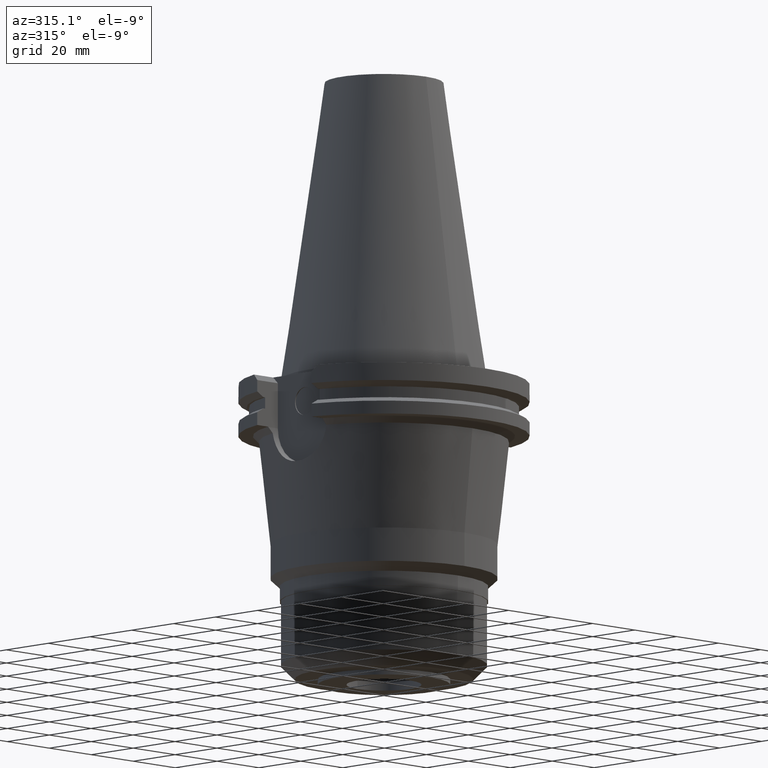
[diagram: clean part render]
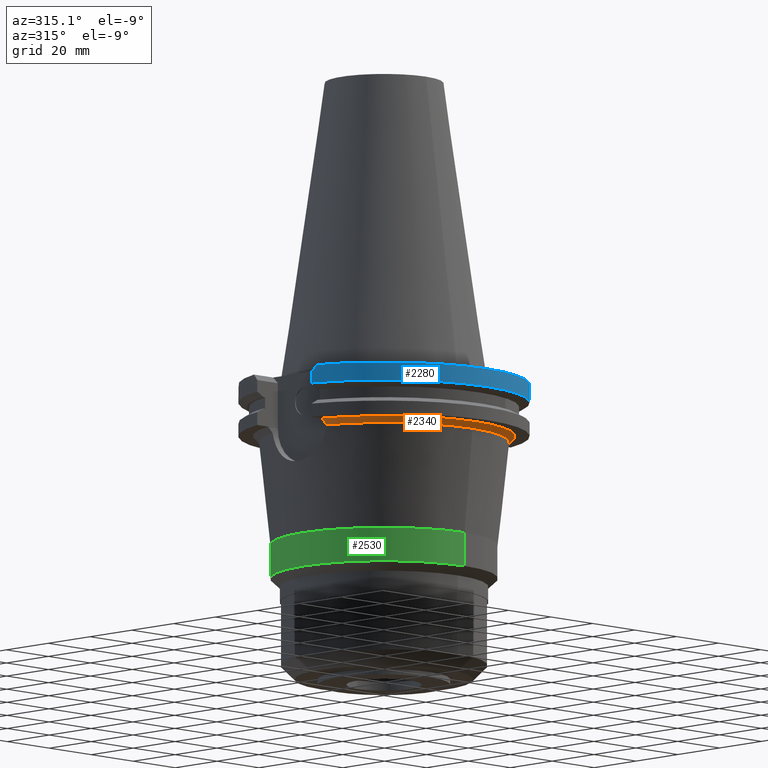
[diagram: same view with three faces highlighted in distinct colors, each labeled with its STEP entity id]
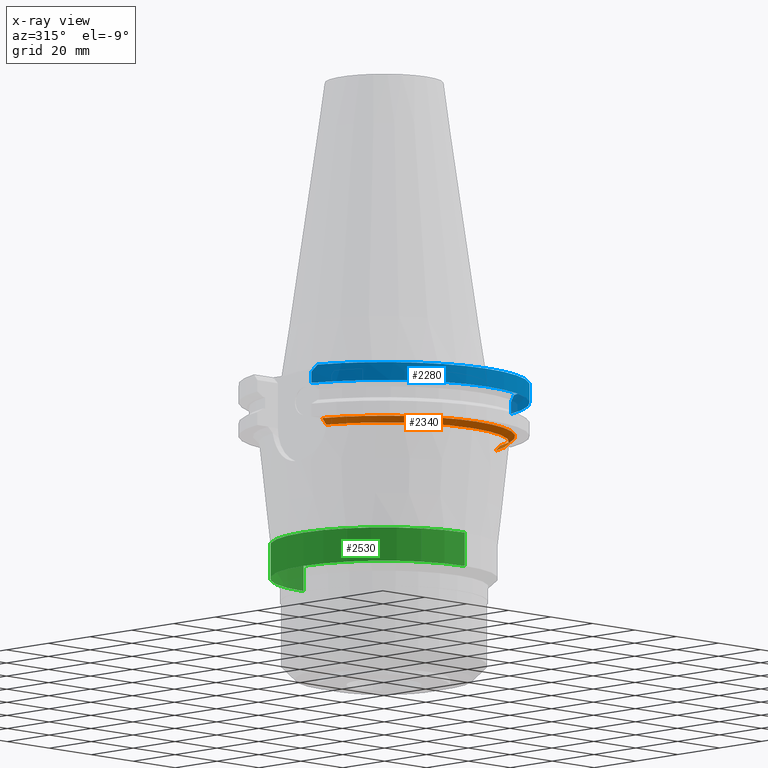
[diagram: x-ray of the same camera — body ghosted, the three highlighted faces saturated]
A machine part, auxiliary view with three faces highlighted in distinct colors.
The next image is the same camera in x-ray (body ghosted, the three faces saturated) — at least one of them is partly hidden behind the body in this view.
Their STEP definitions:

[orange] entity #2340 — the highlighted conical surface has half-angle 45 deg.
#366=CARTESIAN_POINT('',(0.E0,0.E0,-2.105E1));
#367=DIRECTION('',(0.E0,0.E0,1.E0));
#368=DIRECTION('',(0.E0,-1.E0,0.E0));
#369=AXIS2_PLACEMENT_3D('',#366,#367,#368);
#390=CARTESIAN_POINT('',(-4.029682526025E1,-1.281416209726E1,
-2.104999438516E1));
#759=CARTESIAN_POINT('',(4.224856207887E1,-1.295500484705E1,-1.914499925636E1));
#760=CARTESIAN_POINT('',(4.228168231696E1,-1.295500484705E1,-1.911333425951E1));
#761=CARTESIAN_POINT('',(4.231479380006E1,-1.2955E1,-1.908166833100E1));
#762=CARTESIAN_POINT('',(4.234791085017E1,-1.2955E1,-1.905E1));
#788=CARTESIAN_POINT('',(4.224856207887E1,-1.295500484705E1,-1.914499925636E1));
#789=CARTESIAN_POINT('',(4.203174571144E1,-1.295500484705E1,-1.935228911858E1));
#790=CARTESIAN_POINT('',(4.159765986678E1,-1.294506178682E1,-1.976984281422E1));
#791=CARTESIAN_POINT('',(4.094657606724E1,-1.289887472353E1,-2.040521748726E1));
#792=CARTESIAN_POINT('',(4.051307118644E1,-1.284629771849E1,-2.083416688461E1));
#793=CARTESIAN_POINT('',(4.029680950050E1,-1.281421487180E1,-2.104998169903E1));
#798=CARTESIAN_POINT('',(0.E0,0.E0,-2.105E1));
#799=DIRECTION('',(0.E0,0.E0,-1.E0));
#800=DIRECTION('',(0.E0,-1.E0,0.E0));
#801=AXIS2_PLACEMENT_3D('',#798,#799,#800);
#806=CARTESIAN_POINT('',(-4.029682526025E1,-1.281416209726E1,
-2.104999438516E1));
#807=CARTESIAN_POINT('',(-4.051310174242E1,-1.284624784572E1,
-2.083416445847E1));
#808=CARTESIAN_POINT('',(-4.094653214125E1,-1.289890112836E1,
-2.040516149770E1));
#809=CARTESIAN_POINT('',(-4.159763467351E1,-1.294506802393E1,
-1.976979871276E1));
#810=CARTESIAN_POINT('',(-4.203175325895E1,-1.295497925674E1,
-1.935229369358E1));
#811=CARTESIAN_POINT('',(-4.224857017944E1,-1.295497925674E1,
-1.914500319231E1));
#816=CARTESIAN_POINT('',(-4.234791085017E1,-1.2955E1,-1.905E1));
#817=CARTESIAN_POINT('',(-4.231479380006E1,-1.2955E1,-1.908166833100E1));
#818=CARTESIAN_POINT('',(-4.228169040912E1,-1.295497925674E1,
-1.911333818666E1));
#819=CARTESIAN_POINT('',(-4.224857017944E1,-1.295497925674E1,
-1.914500319231E1));
#838=CARTESIAN_POINT('',(0.E0,0.E0,-1.905E1));
#839=DIRECTION('',(0.E0,0.E0,-1.E0));
#840=DIRECTION('',(9.562545848425E-1,-2.925357567335E-1,0.E0));
#841=AXIS2_PLACEMENT_3D('',#838,#839,#840);
#846=CARTESIAN_POINT('',(0.E0,0.E0,-1.905E1));
#847=DIRECTION('',(0.E0,0.E0,-1.E0));
#848=DIRECTION('',(0.E0,-1.E0,0.E0));
#849=AXIS2_PLACEMENT_3D('',#846,#847,#848);
#1626=VERTEX_POINT('',#390);
#1627=CARTESIAN_POINT('',(0.E0,-4.228518463746E1,-2.105E1));
#1628=VERTEX_POINT('',#1627);
#1636=CARTESIAN_POINT('',(-4.224857017944E1,-1.295497925674E1,
-1.914500319231E1));
#1637=VERTEX_POINT('',#1636);
#1638=VERTEX_POINT('',#759);
#1639=VERTEX_POINT('',#762);
#1640=VERTEX_POINT('',#793);
#1641=VERTEX_POINT('',#816);
#1642=CARTESIAN_POINT('',(0.E0,-4.428518463746E1,-1.905E1));
#1643=VERTEX_POINT('',#1642);
#2322=CARTESIAN_POINT('',(0.E0,0.E0,-2.005E1));
#2323=DIRECTION('',(0.E0,0.E0,1.E0));
#2324=DIRECTION('',(0.E0,1.E0,0.E0));
#2325=AXIS2_PLACEMENT_3D('',#2322,#2323,#2324);
#2326=CONICAL_SURFACE('',#2325,4.328518463746E1,4.5E1);
#2327=ORIENTED_EDGE('',*,*,#2299,.F.);
#2328=ORIENTED_EDGE('',*,*,#2007,.T.);
#2329=ORIENTED_EDGE('',*,*,#2032,.F.);
#2330=ORIENTED_EDGE('',*,*,#2044,.T.);
#2331=ORIENTED_EDGE('',*,*,#2067,.T.);
#2333=ORIENTED_EDGE('',*,*,#2332,.F.);
#2335=ORIENTED_EDGE('',*,*,#2334,.F.);
#2337=ORIENTED_EDGE('',*,*,#2336,.F.);
#2338=EDGE_LOOP('',(#2327,#2328,#2329,#2330,#2331,#2333,#2335,#2337));
#2339=FACE_OUTER_BOUND('',#2338,.F.);
#370=CIRCLE('',#369,4.228518463746E1);
#763=B_SPLINE_CURVE_WITH_KNOTS('',3,(#759,#760,#761,#762),.UNSPECIFIED.,.F.,.F.,
(4,4),(0.E0,1.E0),.UNSPECIFIED.);
#794=B_SPLINE_CURVE_WITH_KNOTS('',3,(#788,#789,#790,#791,#792,#793),
.UNSPECIFIED.,.F.,.F.,(4,1,1,4),(0.E0,3.333333333333E-1,6.666666666667E-1,1.E0),
.UNSPECIFIED.);
#802=CIRCLE('',#801,4.228518463746E1);
#812=B_SPLINE_CURVE_WITH_KNOTS('',3,(#806,#807,#808,#809,#810,#811),
.UNSPECIFIED.,.F.,.F.,(4,1,1,4),(0.E0,3.333333333333E-1,6.666666666667E-1,1.E0),
.UNSPECIFIED.);
#820=B_SPLINE_CURVE_WITH_KNOTS('',3,(#816,#817,#818,#819),.UNSPECIFIED.,.F.,.F.,
(4,4),(0.E0,1.E0),.UNSPECIFIED.);
#842=CIRCLE('',#841,4.428518463746E1);
#850=CIRCLE('',#849,4.428518463746E1);
#2007=EDGE_CURVE('',#1638,#1640,#794,.T.);
#2032=EDGE_CURVE('',#1628,#1640,#370,.T.);
#2044=EDGE_CURVE('',#1628,#1626,#802,.T.);
#2067=EDGE_CURVE('',#1626,#1637,#812,.T.);
#2299=EDGE_CURVE('',#1638,#1639,#763,.T.);
#2332=EDGE_CURVE('',#1641,#1637,#820,.T.);
#2334=EDGE_CURVE('',#1643,#1641,#850,.T.);
#2336=EDGE_CURVE('',#1639,#1643,#842,.T.);
#2340=ADVANCED_FACE('',(#2339),#2326,.T.);

[blue] entity #2280 — the highlighted cylindrical surface (partial cylindrical patch) has radius 49.2125 mm, axis along (0, 0, -1).
#108=CARTESIAN_POINT('',(0.E0,2.594781638033E-14,-1.5E0));
#109=DIRECTION('',(0.E0,0.E0,-1.E0));
#110=DIRECTION('',(9.514024724200E-1,-3.079502159004E-1,0.E0));
#111=AXIS2_PLACEMENT_3D('',#108,#109,#110);
#116=CARTESIAN_POINT('',(0.E0,2.594781638033E-14,-1.5E0));
#117=DIRECTION('',(0.E0,0.E0,-1.E0));
#118=DIRECTION('',(0.E0,-1.E0,0.E0));
#119=AXIS2_PLACEMENT_3D('',#116,#117,#118);
#729=CARTESIAN_POINT('',(4.682089417397E1,-1.5155E1,-1.5E0));
#730=CARTESIAN_POINT('',(4.705739607797E1,-1.442433483212E1,-2.230665167880E0));
#731=CARTESIAN_POINT('',(4.727588310257E1,-1.369098379593E1,-2.964016204073E0));
#732=CARTESIAN_POINT('',(4.747671146204E1,-1.2955E1,-3.699999999999E0));
#737=DIRECTION('',(2.622645846769E-13,-3.323839354412E-14,-1.E0));
#738=VECTOR('',#737,3.901333230925E0);
#739=CARTESIAN_POINT('',(4.747671146204E1,-1.2955E1,-3.7E0));
#740=LINE('',#739,#738);
#744=DIRECTION('',(2.640858665149E-13,3.369371400363E-14,1.E0));
#745=VECTOR('',#744,3.901333230925E0);
#746=CARTESIAN_POINT('',(-4.747671146204E1,-1.2955E1,-7.601333230925E0));
#747=LINE('',#746,#745);
#751=CARTESIAN_POINT('',(-4.747671146204E1,-1.2955E1,-3.699999999999E0));
#752=CARTESIAN_POINT('',(-4.727588310257E1,-1.369098379593E1,
-2.964016204073E0));
#753=CARTESIAN_POINT('',(-4.705739607797E1,-1.442433483212E1,
-2.230665167880E0));
#754=CARTESIAN_POINT('',(-4.682089417397E1,-1.5155E1,-1.5E0));
#1019=CARTESIAN_POINT('',(4.747671146204E1,-1.2955E1,-7.601333230925E0));
#1039=CARTESIAN_POINT('',(0.E0,1.121722380079E-14,-7.601333230926E0));
#1040=DIRECTION('',(0.E0,0.E0,1.E0));
#1041=DIRECTION('',(-9.647287063661E-1,-2.632461264923E-1,0.E0));
#1042=AXIS2_PLACEMENT_3D('',#1039,#1040,#1041);
#1047=CARTESIAN_POINT('',(0.E0,1.121722380079E-14,-7.601333230926E0));
#1048=DIRECTION('',(0.E0,0.E0,1.E0));
#1049=DIRECTION('',(0.E0,-1.E0,0.E0));
#1050=AXIS2_PLACEMENT_3D('',#1047,#1048,#1049);
#1662=VERTEX_POINT('',#1019);
#1663=CARTESIAN_POINT('',(4.747671146204E1,-1.2955E1,-3.7E0));
#1664=VERTEX_POINT('',#1663);
#1681=CARTESIAN_POINT('',(-4.747671146204E1,-1.2955E1,-3.7E0));
#1682=VERTEX_POINT('',#1681);
#1683=CARTESIAN_POINT('',(-4.747671146204E1,-1.2955E1,-7.601333230925E0));
#1684=VERTEX_POINT('',#1683);
#1707=CARTESIAN_POINT('',(4.682089417397E1,-1.5155E1,-1.5E0));
#1708=VERTEX_POINT('',#1707);
#1709=CARTESIAN_POINT('',(0.E0,-4.92125E1,-1.5E0));
#1710=CARTESIAN_POINT('',(-4.682089417397E1,-1.5155E1,-1.5E0));
#1711=VERTEX_POINT('',#1709);
#1712=VERTEX_POINT('',#1710);
#1734=CARTESIAN_POINT('',(0.E0,-4.92125E1,-7.601333230926E0));
#1735=VERTEX_POINT('',#1734);
#2260=CARTESIAN_POINT('',(0.E0,2.594781638033E-14,1.1188E2));
#2261=DIRECTION('',(0.E0,0.E0,-1.E0));
#2262=DIRECTION('',(0.E0,-1.E0,0.E0));
#2263=AXIS2_PLACEMENT_3D('',#2260,#2261,#2262);
#2264=CYLINDRICAL_SURFACE('',#2263,4.92125E1);
#2266=ORIENTED_EDGE('',*,*,#2265,.T.);
#2268=ORIENTED_EDGE('',*,*,#2267,.T.);
#2270=ORIENTED_EDGE('',*,*,#2269,.F.);
#2272=ORIENTED_EDGE('',*,*,#2271,.F.);
#2274=ORIENTED_EDGE('',*,*,#2273,.T.);
#2275=ORIENTED_EDGE('',*,*,#2252,.T.);
#2276=ORIENTED_EDGE('',*,*,#1869,.F.);
#2277=ORIENTED_EDGE('',*,*,#1867,.F.);
#2278=EDGE_LOOP('',(#2266,#2268,#2270,#2272,#2274,#2275,#2276,#2277));
#2279=FACE_OUTER_BOUND('',#2278,.F.);
#112=CIRCLE('',#111,4.92125E1);
#120=CIRCLE('',#119,4.92125E1);
#733=B_SPLINE_CURVE_WITH_KNOTS('',3,(#729,#730,#731,#732),.UNSPECIFIED.,.F.,.F.,
(4,4),(0.E0,1.E0),.UNSPECIFIED.);
#755=B_SPLINE_CURVE_WITH_KNOTS('',3,(#751,#752,#753,#754),.UNSPECIFIED.,.F.,.F.,
(4,4),(0.E0,1.E0),.UNSPECIFIED.);
#1043=CIRCLE('',#1042,4.92125E1);
#1051=CIRCLE('',#1050,4.92125E1);
#1867=EDGE_CURVE('',#1708,#1711,#112,.T.);
#1869=EDGE_CURVE('',#1711,#1712,#120,.T.);
#2252=EDGE_CURVE('',#1682,#1712,#755,.T.);
#2265=EDGE_CURVE('',#1708,#1664,#733,.T.);
#2267=EDGE_CURVE('',#1664,#1662,#740,.T.);
#2269=EDGE_CURVE('',#1735,#1662,#1051,.T.);
#2271=EDGE_CURVE('',#1684,#1735,#1043,.T.);
#2273=EDGE_CURVE('',#1684,#1682,#747,.T.);
#2280=ADVANCED_FACE('',(#2279),#2264,.T.);

[green] entity #2530 — the highlighted cylindrical surface (partial cylindrical patch) has radius 38.5 mm, axis along (0, 0, -1).
#402=CARTESIAN_POINT('',(0.E0,0.E0,-5.63E1));
#403=DIRECTION('',(0.E0,0.E0,-1.E0));
#404=DIRECTION('',(0.E0,-1.E0,0.E0));
#405=AXIS2_PLACEMENT_3D('',#402,#403,#404);
#1085=DIRECTION('',(0.E0,-1.121909582779E-14,-1.E0));
#1086=VECTOR('',#1085,1.14E1);
#1087=CARTESIAN_POINT('',(0.E0,-3.85E1,-5.63E1));
#1088=LINE('',#1087,#1086);
#1092=DIRECTION('',(0.E0,1.121909582779E-14,-1.E0));
#1093=VECTOR('',#1092,1.14E1);
#1094=CARTESIAN_POINT('',(0.E0,3.85E1,-5.63E1));
#1095=LINE('',#1094,#1093);
#1122=CARTESIAN_POINT('',(0.E0,0.E0,-6.77E1));
#1123=DIRECTION('',(0.E0,0.E0,1.E0));
#1124=DIRECTION('',(0.E0,1.E0,0.E0));
#1125=AXIS2_PLACEMENT_3D('',#1122,#1123,#1124);
#1617=CARTESIAN_POINT('',(0.E0,3.85E1,-6.77E1));
#1618=VERTEX_POINT('',#1617);
#1619=CARTESIAN_POINT('',(0.E0,-3.85E1,-6.77E1));
#1620=VERTEX_POINT('',#1619);
#1621=CARTESIAN_POINT('',(0.E0,3.85E1,-5.63E1));
#1622=VERTEX_POINT('',#1621);
#1623=CARTESIAN_POINT('',(0.E0,-3.85E1,-5.63E1));
#1624=VERTEX_POINT('',#1623);
#2516=CARTESIAN_POINT('',(0.E0,2.594781638033E-14,1.1188E2));
#2517=DIRECTION('',(0.E0,0.E0,-1.E0));
#2518=DIRECTION('',(0.E0,-1.E0,0.E0));
#2519=AXIS2_PLACEMENT_3D('',#2516,#2517,#2518);
#2520=CYLINDRICAL_SURFACE('',#2519,3.85E1);
#2522=ORIENTED_EDGE('',*,*,#2521,.F.);
#2523=ORIENTED_EDGE('',*,*,#2047,.F.);
#2525=ORIENTED_EDGE('',*,*,#2524,.T.);
#2527=ORIENTED_EDGE('',*,*,#2526,.F.);
#2528=EDGE_LOOP('',(#2522,#2523,#2525,#2527));
#2529=FACE_OUTER_BOUND('',#2528,.F.);
#406=CIRCLE('',#405,3.85E1);
#1126=CIRCLE('',#1125,3.85E1);
#2047=EDGE_CURVE('',#1624,#1622,#406,.T.);
#2521=EDGE_CURVE('',#1622,#1618,#1095,.T.);
#2524=EDGE_CURVE('',#1624,#1620,#1088,.T.);
#2526=EDGE_CURVE('',#1618,#1620,#1126,.T.);
#2530=ADVANCED_FACE('',(#2529),#2520,.T.);